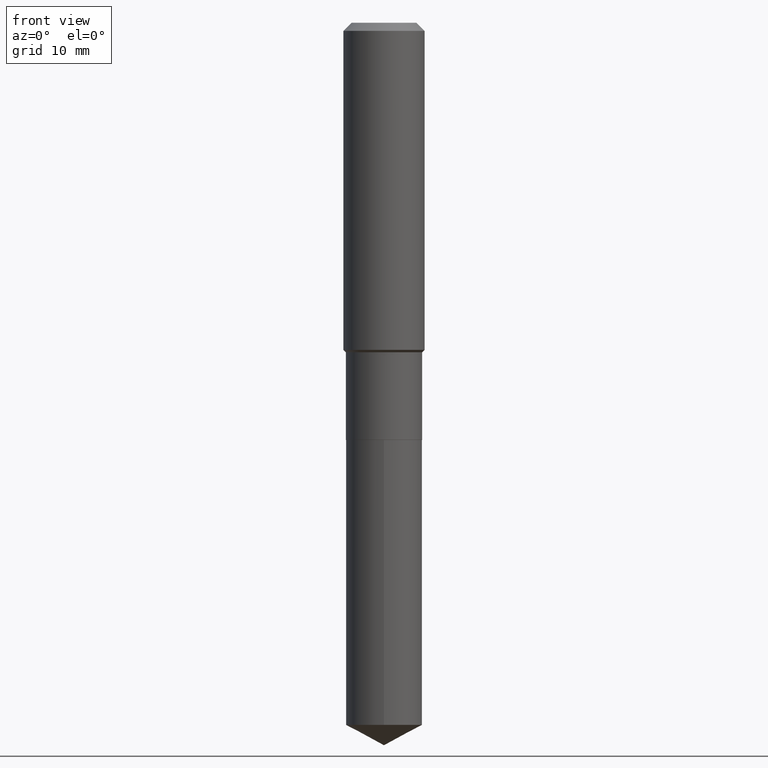
[diagram: clean part render]
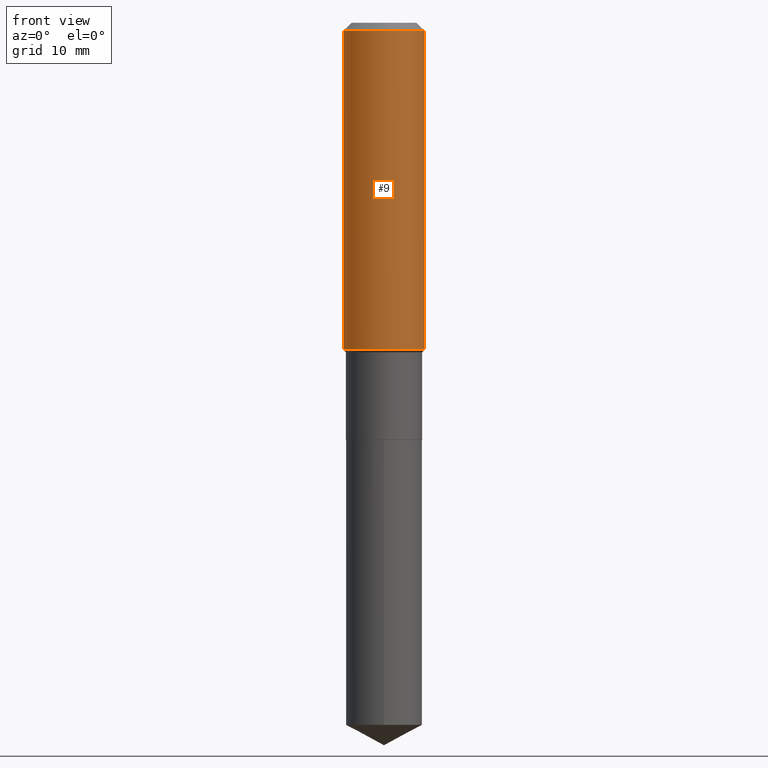
[diagram: same view with one face highlighted and labeled with its STEP entity id]
A machine part, front view. The second image highlights one B-rep face of the part: STEP entity #9.
In plain terms, the highlighted cylindrical surface (partial cylindrical patch) has radius 5 mm, axis along (-0, 0, 1).
Its self-contained STEP definition (entity closure, byte-faithful):
#9 = ADVANCED_FACE ( 'NONE', ( #106 ), #403, .T. ) ;
#15 = VERTEX_POINT ( 'NONE', #142 ) ;
#19 = VERTEX_POINT ( 'NONE', #281 ) ;
#34 = LINE ( 'NONE', #312, #367 ) ;
#49 = CARTESIAN_POINT ( 'NONE',  ( 0.1968500000000000250, -1.512055823412797189E-15, -0.03937000000000029365 ) ) ;
#59 = ORIENTED_EDGE ( 'NONE', *, *, #294, .T. ) ;
#71 = VERTEX_POINT ( 'NONE', #49 ) ;
#72 = EDGE_CURVE ( 'NONE', #15, #19, #286, .T. ) ;
#73 = CARTESIAN_POINT ( 'NONE',  ( 0.000000000000000000, 0.000000000000000000, 0.000000000000000000 ) ) ;
#81 = EDGE_CURVE ( 'NONE', #194, #71, #84, .T. ) ;
#84 = CIRCLE ( 'NONE', #152, 0.1968500000000000250 ) ;
#90 = AXIS2_PLACEMENT_3D ( 'NONE', #232, #422, #263 ) ;
#106 = FACE_OUTER_BOUND ( 'NONE', #271, .T. ) ;
#107 = ORIENTED_EDGE ( 'NONE', *, *, #81, .F. ) ;
#125 = CARTESIAN_POINT ( 'NONE',  ( -0.1968500000000001082, 1.398703375343757985E-15, -9.682923725166787881E-30 ) ) ;
#142 = CARTESIAN_POINT ( 'NONE',  ( -0.1968500000000002192, -4.139484324329237071E-15, -1.586199999999999610 ) ) ;
#147 = DIRECTION ( 'NONE',  ( -2.445468806185136877E-29, 3.491481338843145188E-15, 1.000000000000000000 ) ) ;
#152 = AXIS2_PLACEMENT_3D ( 'NONE', #419, #339, #427 ) ;
#165 = AXIS2_PLACEMENT_3D ( 'NONE', #73, #219, #398 ) ;
#193 = EDGE_CURVE ( 'NONE', #15, #194, #383, .T. ) ;
#194 = VERTEX_POINT ( 'NONE', #456 ) ;
#219 = DIRECTION ( 'NONE',  ( -2.445468806185136597E-29, 3.491481338843145583E-15, 1.000000000000000000 ) ) ;
#232 = CARTESIAN_POINT ( 'NONE',  ( 3.879002620370862839E-29, -5.538187699672996436E-15, -1.586199999999999610 ) ) ;
#263 = DIRECTION ( 'NONE',  ( 1.000000000000000000, -6.982962677686265922E-15, 0.000000000000000000 ) ) ;
#271 = EDGE_LOOP ( 'NONE', ( #468, #332, #59, #107 ) ) ;
#281 = CARTESIAN_POINT ( 'NONE',  ( 0.1968500000000002192, -6.912783902775538833E-15, -1.586199999999999610 ) ) ;
#286 = CIRCLE ( 'NONE', #90, 0.1968500000000002192 ) ;
#294 = EDGE_CURVE ( 'NONE', #19, #71, #34, .T. ) ;
#312 = CARTESIAN_POINT ( 'NONE',  ( 0.1968500000000001082, -1.374596203102542397E-15, 9.598753983154305062E-30 ) ) ;
#327 = VECTOR ( 'NONE', #429, 39.37007874015748143 ) ;
#332 = ORIENTED_EDGE ( 'NONE', *, *, #72, .T. ) ;
#339 = DIRECTION ( 'NONE',  ( -2.445468806185136597E-29, 3.491481338843145583E-15, 1.000000000000000000 ) ) ;
#367 = VECTOR ( 'NONE', #147, 39.37007874015748143 ) ;
#383 = LINE ( 'NONE', #125, #327 ) ;
#398 = DIRECTION ( 'NONE',  ( 1.000000000000000000, -6.982962677686266711E-15, 4.876176775795935793E-29 ) ) ;
#403 = CYLINDRICAL_SURFACE ( 'NONE', #165, 0.1968500000000001082 ) ;
#419 = CARTESIAN_POINT ( 'NONE',  ( 9.627810689950954155E-31, -1.374596203102556547E-16, -0.03937000000000029365 ) ) ;
#422 = DIRECTION ( 'NONE',  ( -2.445468806185136597E-29, 3.491481338843145583E-15, 1.000000000000000000 ) ) ;
#427 = DIRECTION ( 'NONE',  ( 1.000000000000000000, -6.982962677686265922E-15, 0.000000000000000000 ) ) ;
#429 = DIRECTION ( 'NONE',  ( -2.445468806185136877E-29, 3.491481338843145188E-15, 1.000000000000000000 ) ) ;
#456 = CARTESIAN_POINT ( 'NONE',  ( -0.1968500000000000250, -1.439120284647867629E-15, -0.03937000000000029365 ) ) ;
#468 = ORIENTED_EDGE ( 'NONE', *, *, #193, .F. ) ;